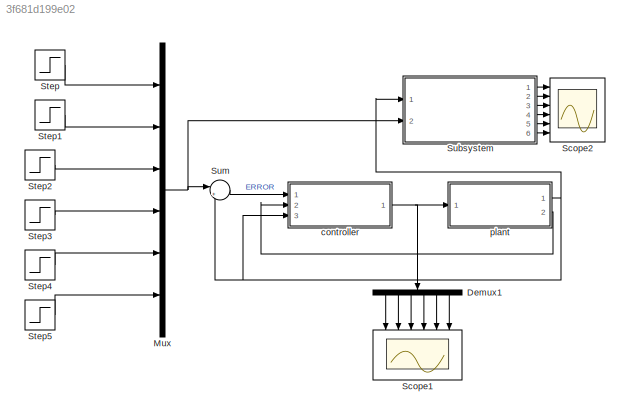
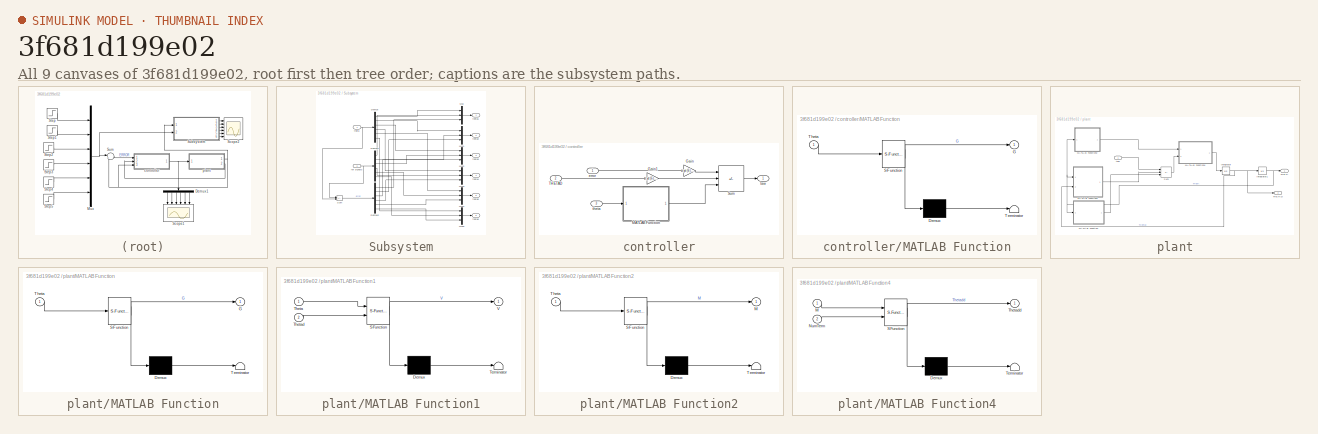
[diagram: thumbnail index - all 9 canvases of the model, root first then tree order]
MODEL slx_3f681d199e02
KIND model
CONFIG AbsTol = auto
CONFIG EnableMultiTasking = off
CONFIG FixedStep = auto
CONFIG MaxStep = auto
CONFIG MinStep = auto
CONFIG RelTol = 1e-3
CONFIG SampleTimeConstraint = Unconstrained
CONFIG SolverName = VariableStepAuto
CONFIG StartTime = 0.0
CONFIG StopTime = 10.0
BLOCK [Demux] Demux1
  NameLocation = left
  Outputs = 6
  Ports = [1, 6]
BLOCK [Mux] Mux
  DisplayOption = bar
  Inputs = 6
  Ports = [6, 1]
BLOCK [Scope] Scope1
  Floating = off
  NameLocation = left
  NumInputPorts = 6
  Ports = [6]
  ScopeSpecificationString = Simulink.scopes.TimeScopeBlockCfg('CurrentConfiguration', extmgr.ConfigurationSet(extmgr.Configuration('Core','General UI',true),extmgr.Configuration('Core','Source UI',true),extmgr.Configuration('Sources','WiredSimulink',true,'DataLoggingVariableName','ScopeData1'),extmgr.Configuration('Visuals','Time Domain',true,'SerializedDisplays',{struct('MinYLimReal','-13542.14941','MaxYLimReal','121879.344...<+4994ch>
BLOCK [Scope] Scope2
  Floating = off
  NumInputPorts = 6
  Ports = [6]
  ScopeSpecificationString = Simulink.scopes.TimeScopeBlockCfg('CurrentConfiguration', extmgr.ConfigurationSet(extmgr.Configuration('Core','General UI',true),extmgr.Configuration('Core','Source UI',true),extmgr.Configuration('Sources','WiredSimulink',true),extmgr.Configuration('Visuals','Time Domain',true,'SerializedDisplays',{struct('MinYLimReal','-0.26891','MaxYLimReal','1.26891','YLabelReal','','MinYLimMag','0.00000','MaxY...<+7012ch>
BLOCK [Step] Step
  SampleTime = 0
BLOCK [Step] Step1
  SampleTime = 0
BLOCK [Step] Step2
  SampleTime = 0
BLOCK [Step] Step3
  SampleTime = 0
BLOCK [Step] Step4
  SampleTime = 0
BLOCK [Step] Step5
  SampleTime = 0
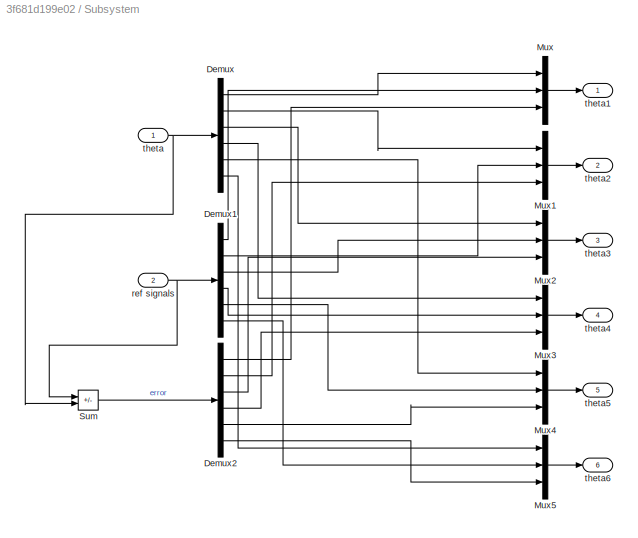
BLOCK [SubSystem] Subsystem
  Ports = [2, 6]
  RequestExecContextInheritance = off
BLOCK [Demux] Subsystem/Demux
  Outputs = 6
  Ports = [1, 6]
BLOCK [Demux] Subsystem/Demux1
  Outputs = 6
  Ports = [1, 6]
BLOCK [Demux] Subsystem/Demux2
  Outputs = 6
  Ports = [1, 6]
BLOCK [Mux] Subsystem/Mux
  DisplayOption = bar
  Inputs = 3
  Ports = [3, 1]
BLOCK [Mux] Subsystem/Mux1
  DisplayOption = bar
  Inputs = 3
  Ports = [3, 1]
BLOCK [Mux] Subsystem/Mux2
  DisplayOption = bar
  Inputs = 3
  Ports = [3, 1]
BLOCK [Mux] Subsystem/Mux3
  DisplayOption = bar
  Inputs = 3
  Ports = [3, 1]
BLOCK [Mux] Subsystem/Mux4
  DisplayOption = bar
  Inputs = 3
  Ports = [3, 1]
BLOCK [Mux] Subsystem/Mux5
  DisplayOption = bar
  Inputs = 3
  Ports = [3, 1]
BLOCK [Sum] Subsystem/Sum
  IconShape = rectangular
  Inputs = +-
  Ports = [2, 1]
BLOCK [Inport] Subsystem/ref signals
  Port = 2
BLOCK [Inport] Subsystem/theta
BLOCK [Outport] Subsystem/theta1
BLOCK [Outport] Subsystem/theta2
  Port = 2
BLOCK [Outport] Subsystem/theta3
  Port = 3
BLOCK [Outport] Subsystem/theta4
  Port = 4
BLOCK [Outport] Subsystem/theta5
  Port = 5
BLOCK [Outport] Subsystem/theta6
  Port = 6
BLOCK [Sum] Sum
  Inputs = |+-
  Ports = [2, 1]
BLOCK [SubSystem] controller
  Ports = [3, 1]
  RequestExecContextInheritance = off
BLOCK [Gain] controller/Gain
  Gain = eye(6).*[0.75,1.35,0.95,0.1112,12702,9.9]
  Multiplication = Matrix(K*u) (u vector)
BLOCK [Gain] controller/Gain1
  Gain = eye(6).*[5332500,13215474,9428913,1108327,1550,1.05]
  Multiplication = Matrix(K*u) (u vector)
BLOCK [SubSystem] controller/MATLAB Function
  ErrorFcn = Stateflow.Translate.translate
  PermitHierarchicalResolution = ExplicitOnly
  Ports = [1, 1]
  RequestExecContextInheritance = off
  SFBlockType = MATLAB Function
  TreatAsAtomicUnit = on
BLOCK [Demux] controller/MATLAB Function/ Demux 
  Outputs = 1
  Ports = [1, 1]
BLOCK [S-Function] controller/MATLAB Function/ SFunction 
  EnableBusSupport = on
  FunctionName = sf_sfun
  PortCounts = [1 2]
  Ports = [1, 2]
  SFcnIsStateOwnerBlock = off
  SFunctionDeploymentMode = off
  Tag = Stateflow S-Function 2
BLOCK [Terminator] controller/MATLAB Function/ Terminator 
BLOCK [Outport] controller/MATLAB Function/G
  VectorParamsAs1DForOutWhenUnconnected = off
BLOCK [Inport] controller/MATLAB Function/Theta
BLOCK [Sum] controller/Sum
  IconShape = rectangular
  Inputs = +-+
  Ports = [3, 1]
BLOCK [Inport] controller/THETAD
  Port = 2
BLOCK [Inport] controller/error
BLOCK [Outport] controller/taw
BLOCK [Inport] controller/theta
  Port = 3
BLOCK [SubSystem] plant
  Ports = [1, 2]
  RequestExecContextInheritance = off
BLOCK [Integrator] plant/Integrator
  InitialCondition = [0,0,0,0,0,0]
  Ports = [1, 1]
BLOCK [Integrator] plant/Integrator1
  InitialCondition = [0,0,0,0,0,0]
  Ports = [1, 1]
BLOCK [SubSystem] plant/MATLAB Function
  ErrorFcn = Stateflow.Translate.translate
  PermitHierarchicalResolution = ExplicitOnly
  Ports = [1, 1]
  RequestExecContextInheritance = off
  SFBlockType = MATLAB Function
  TreatAsAtomicUnit = on
BLOCK [Demux] plant/MATLAB Function/ Demux 
  Outputs = 1
  Ports = [1, 1]
BLOCK [S-Function] plant/MATLAB Function/ SFunction 
  EnableBusSupport = on
  FunctionName = sf_sfun
  PortCounts = [1 2]
  Ports = [1, 2]
  SFcnIsStateOwnerBlock = off
  SFunctionDeploymentMode = off
  Tag = Stateflow S-Function 4
BLOCK [Terminator] plant/MATLAB Function/ Terminator 
BLOCK [Outport] plant/MATLAB Function/G
  VectorParamsAs1DForOutWhenUnconnected = off
BLOCK [Inport] plant/MATLAB Function/Theta
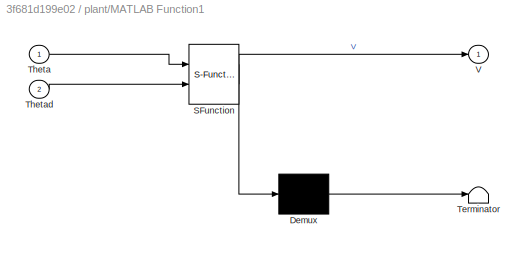
BLOCK [SubSystem] plant/MATLAB Function1
  ErrorFcn = Stateflow.Translate.translate
  PermitHierarchicalResolution = ExplicitOnly
  Ports = [2, 1]
  RequestExecContextInheritance = off
  SFBlockType = MATLAB Function
  TreatAsAtomicUnit = on
BLOCK [Demux] plant/MATLAB Function1/ Demux 
  Outputs = 1
  Ports = [1, 1]
BLOCK [S-Function] plant/MATLAB Function1/ SFunction 
  EnableBusSupport = on
  FunctionName = sf_sfun
  PortCounts = [2 2]
  Ports = [2, 2]
  SFcnIsStateOwnerBlock = off
  SFunctionDeploymentMode = off
  Tag = Stateflow S-Function 1
BLOCK [Terminator] plant/MATLAB Function1/ Terminator 
BLOCK [Inport] plant/MATLAB Function1/Theta
BLOCK [Inport] plant/MATLAB Function1/Thetad
  Port = 2
BLOCK [Outport] plant/MATLAB Function1/V
  VectorParamsAs1DForOutWhenUnconnected = off
BLOCK [SubSystem] plant/MATLAB Function2
  ErrorFcn = Stateflow.Translate.translate
  PermitHierarchicalResolution = ExplicitOnly
  Ports = [1, 1]
  RequestExecContextInheritance = off
  SFBlockType = MATLAB Function
  TreatAsAtomicUnit = on
BLOCK [Demux] plant/MATLAB Function2/ Demux 
  Outputs = 1
  Ports = [1, 1]
BLOCK [S-Function] plant/MATLAB Function2/ SFunction 
  EnableBusSupport = on
  FunctionName = sf_sfun
  PortCounts = [1 2]
  Ports = [1, 2]
  SFcnIsStateOwnerBlock = off
  SFunctionDeploymentMode = off
  Tag = Stateflow S-Function 3
BLOCK [Terminator] plant/MATLAB Function2/ Terminator 
BLOCK [Outport] plant/MATLAB Function2/M
  VectorParamsAs1DForOutWhenUnconnected = off
BLOCK [Inport] plant/MATLAB Function2/Theta
BLOCK [SubSystem] plant/MATLAB Function4
  ErrorFcn = Stateflow.Translate.translate
  PermitHierarchicalResolution = ExplicitOnly
  Ports = [2, 1]
  RequestExecContextInheritance = off
  SFBlockType = MATLAB Function
  TreatAsAtomicUnit = on
BLOCK [Demux] plant/MATLAB Function4/ Demux 
  Outputs = 1
  Ports = [1, 1]
BLOCK [S-Function] plant/MATLAB Function4/ SFunction 
  EnableBusSupport = on
  FunctionName = sf_sfun
  PortCounts = [2 2]
  Ports = [2, 2]
  SFcnIsStateOwnerBlock = off
  SFunctionDeploymentMode = off
  Tag = Stateflow S-Function 5
BLOCK [Terminator] plant/MATLAB Function4/ Terminator 
BLOCK [Inport] plant/MATLAB Function4/M
BLOCK [Inport] plant/MATLAB Function4/NumTerm
  Port = 2
BLOCK [Outport] plant/MATLAB Function4/Thetadd
  VectorParamsAs1DForOutWhenUnconnected = off
BLOCK [Sum] plant/Sum
  IconShape = rectangular
  Inputs = +--
  Ports = [3, 1]
BLOCK [Outport] plant/THETA
BLOCK [Outport] plant/THETAD
  Port = 2
BLOCK [Inport] plant/taw
LINE Demux1:1 -> Scope1:1
LINE Demux1:2 -> Scope1:2
LINE Demux1:3 -> Scope1:3
LINE Demux1:4 -> Scope1:4
LINE Demux1:5 -> Scope1:5
LINE Demux1:6 -> Scope1:6
NET Mux:1 -> Subsystem:2, Sum:1
LINE Step1:1 -> Mux:2
LINE Step2:1 -> Mux:3
LINE Step3:1 -> Mux:4
LINE Step4:1 -> Mux:5
LINE Step5:1 -> Mux:6
LINE Step:1 -> Mux:1
LINE Subsystem/Demux1:1 -> Subsystem/Mux:2
LINE Subsystem/Demux1:2 -> Subsystem/Mux1:2
LINE Subsystem/Demux1:3 -> Subsystem/Mux2:2
LINE Subsystem/Demux1:4 -> Subsystem/Mux3:2
LINE Subsystem/Demux1:5 -> Subsystem/Mux4:2
LINE Subsystem/Demux1:6 -> Subsystem/Mux5:2
LINE Subsystem/Demux2:1 -> Subsystem/Mux:3
LINE Subsystem/Demux2:2 -> Subsystem/Mux1:3
LINE Subsystem/Demux2:3 -> Subsystem/Mux2:3
LINE Subsystem/Demux2:4 -> Subsystem/Mux3:3
LINE Subsystem/Demux2:5 -> Subsystem/Mux4:3
LINE Subsystem/Demux2:6 -> Subsystem/Mux5:3
LINE Subsystem/Demux:1 -> Subsystem/Mux:1
LINE Subsystem/Demux:2 -> Subsystem/Mux1:1
LINE Subsystem/Demux:3 -> Subsystem/Mux2:1
LINE Subsystem/Demux:4 -> Subsystem/Mux3:1
LINE Subsystem/Demux:5 -> Subsystem/Mux4:1
LINE Subsystem/Demux:6 -> Subsystem/Mux5:1
LINE Subsystem/Mux1:1 -> Subsystem/theta2:1
LINE Subsystem/Mux2:1 -> Subsystem/theta3:1
LINE Subsystem/Mux3:1 -> Subsystem/theta4:1
LINE Subsystem/Mux4:1 -> Subsystem/theta5:1
LINE Subsystem/Mux5:1 -> Subsystem/theta6:1
LINE Subsystem/Mux:1 -> Subsystem/theta1:1
LINE Subsystem/Sum:1 -> Subsystem/Demux2:1
NET Subsystem/ref signals:1 -> Subsystem/Demux1:1, Subsystem/Sum:1
NET Subsystem/theta:1 -> Subsystem/Demux:1, Subsystem/Sum:2
LINE Subsystem:1 -> Scope2:1
LINE Subsystem:2 -> Scope2:2
LINE Subsystem:3 -> Scope2:3
LINE Subsystem:4 -> Scope2:4
LINE Subsystem:5 -> Scope2:5
LINE Subsystem:6 -> Scope2:6
LINE Sum:1 -> controller:1
LINE controller/Gain1:1 -> controller/Sum:2
LINE controller/Gain:1 -> controller/Sum:1
LINE controller/MATLAB Function:1 -> controller/Sum:3
LINE controller/Sum:1 -> controller/taw:1
LINE controller/THETAD:1 -> controller/Gain1:1
LINE controller/error:1 -> controller/Gain:1
LINE controller/theta:1 -> controller/MATLAB Function:1
NET controller:1 -> Demux1:1, plant:1
NET plant/Integrator1:1 -> plant/MATLAB Function1:1, plant/MATLAB Function2:1, plant/MATLAB Function:1, plant/THETA:1
NET plant/Integrator:1 -> plant/Integrator1:1, plant/MATLAB Function1:2, plant/THETAD:1
LINE plant/MATLAB Function1:1 -> plant/Sum:2
LINE plant/MATLAB Function2:1 -> plant/MATLAB Function4:1
LINE plant/MATLAB Function4:1 -> plant/Integrator:1
LINE plant/MATLAB Function:1 -> plant/Sum:3
LINE plant/Sum:1 -> plant/MATLAB Function4:2
LINE plant/taw:1 -> plant/Sum:1
NET plant:1 -> Subsystem:1, Sum:2, controller:3
LINE plant:2 -> controller:2
note: NET lines group one-source signal fan-out (src -> all destinations, sorted); 1:1 wires keep LINE
CHART controller/MATLAB Function states=1 transitions=1
  STATE_LABEL 'eML_blk_kernel()'
  STATE_LABEL 'SCRIPT:\nfunction G = NumG(Theta)\nt1=Theta(1);\nt2=Theta(2);\nt3=Theta(3);\nt4=Theta(4);\nt5=Theta(5);\nt6=Theta(6);\n\nL1=0.1025;\nL2=0.408;\nL3=0.376;\nL4=0.1025; \nL5=0.1025;\n\nG=[0\n   5.8614750000000004348521542851813*L3*sin(t2 + t3 + t4 + t5) - 32201.128800000001308035280089825*sin(t2 + t3) - 50391.223200000000709678715793416*sin(t2) - 4806.4095000000003565787665138487*sin(t2 + t3 + t4) - 37.1308500000000...<+803ch>'
CHART plant/MATLAB Function2 states=1 transitions=1
  STATE_LABEL 'eML_blk_kernel()'
  STATE_LABEL 'SCRIPT:\nfunction M = NumM(Theta)\nt1=Theta(1);\nt2=Theta(2);\nt3=Theta(3);\nt4=Theta(4);\nt5=Theta(5);\nt6=Theta(6);\n\nL1=0.1025;\nL2=0.408;\nL3=0.376;\nL4=0.1025; \nL5=0.1025;\n\n\nM=zeros(6);\nM(1)=(999498*cos(t3 + t4))/5 - (9799*L4)/40 - (33481296*cos(2*t2 + t3))/25 -...\n    (30203396714246934648101547*cos(2*t2))/28823037615171174400 - (401759*cos(2*t2 + 2*t3 + 2*t4))/16 -...\n    (15427656*cos(2*t2 + 2*t3))/2...<+3608ch>'
CHART plant/MATLAB Function states=1 transitions=1
  STATE_LABEL 'eML_blk_kernel()'
  STATE_LABEL 'SCRIPT:\nfunction G = NumG(Theta)\nt1=Theta(1);\nt2=Theta(2);\nt3=Theta(3);\nt4=Theta(4);\nt5=Theta(5);\nt6=Theta(6);\n\nL1=0.1025;\nL2=0.408;\nL3=0.376;\nL4=0.1025; \nL5=0.1025;\n\nG=[0\n   5.8614750000000004348521542851813*L3*sin(t2 + t3 + t4 + t5) - 32201.128800000001308035280089825*sin(t2 + t3) - 50391.223200000000709678715793416*sin(t2) - 4806.4095000000003565787665138487*sin(t2 + t3 + t4) - 37.1308500000000...<+803ch>'
CHART plant/MATLAB Function4 states=1 transitions=1
  STATE_LABEL 'eML_blk_kernel()'
  STATE_LABEL 'SCRIPT:\nfunction Thetadd = Response(M,NumTerm)\nThetadd=M\\NumTerm;\n'
CHART plant/MATLAB Function1 states=1 transitions=1
  STATE_LABEL 'eML_blk_kernel()'
  STATE_LABEL 'SCRIPT:\nfunction V = NumV(Theta,Thetad)\nt1=Theta(1);\nt2=Theta(2);\nt3=Theta(3);\nt4=Theta(4);\nt5=Theta(5);\nt6=Theta(6);\ntd1=Thetad(1);\ntd2=Thetad(2);\ntd3=Thetad(3);\ntd4=Thetad(4);\ntd5=Thetad(5);\ntd6=Thetad(6);\n\nL1=0.1025;\nL2=0.408;\nL3=0.376;\nL4=0.1025; \nL5=0.1025;\n\nV=[td2*(td1*(25109.9375*sin(2.0*t2 + 2.0*t3 + 2.0*t4) + 1339251.84*sin(2.0*t2 + t3) + 184221.2*sin(2.0*t2 + 2.0*t3 + t4) + 1047890.82668...<+3608ch>'
CHART  states=0 transitions=0
CHART  states=0 transitions=0
CHART  states=0 transitions=0
CHART  states=0 transitions=0
CHART  states=0 transitions=0
